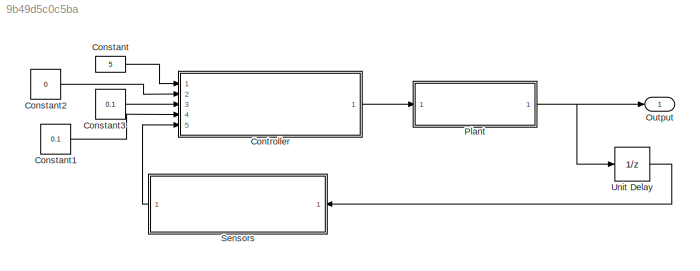
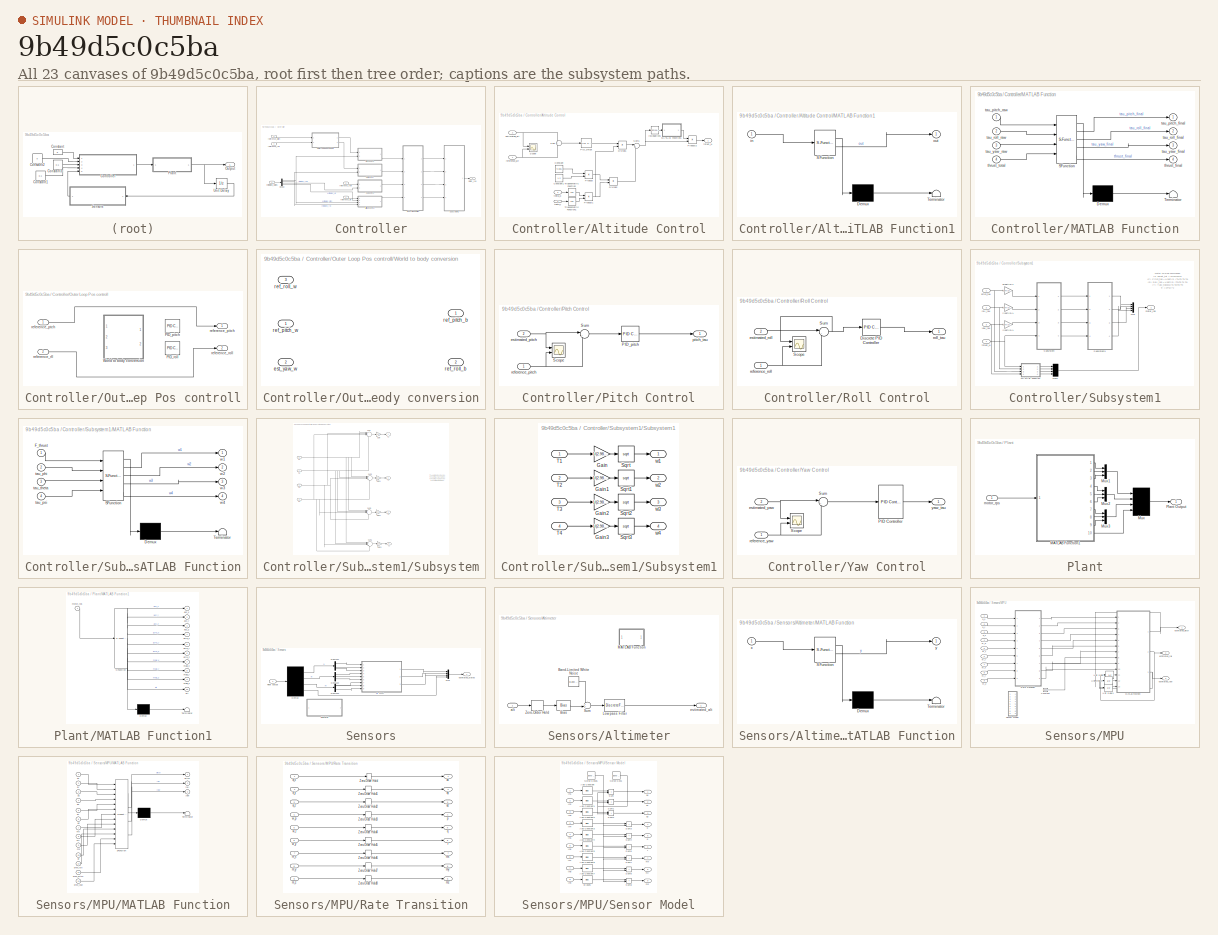
[diagram: thumbnail index - all 23 canvases of the model, root first then tree order]
MODEL slx_9b49d5c0c5ba
KIND model
CONFIG AbsTol = auto
CONFIG EnableMultiTasking = off
CONFIG FixedStep = auto
CONFIG MaxStep = auto
CONFIG MinStep = auto
CONFIG RelTol = 1e-3
CONFIG SampleTimeConstraint = Unconstrained
CONFIG SolverName = ode1
CONFIG StartTime = 0.0
CONFIG StopTime = 10.0
WORKSPACE source: MATLAB code (in-file)
WORKSPACE m = 1.2
WORKSPACE g = 9.81
WORKSPACE I = diag([0.014,0.018,0.028])
WORKSPACE l = 0.225
WORKSPACE b = 2.98e-6*(2*pi)^2  (= 0.000117645684461)
WORKSPACE d = 1.14e-7*(2*pi)^2  (= 4.5005396069e-06)
WORKSPACE Cd = 0.1
WORKSPACE code: m_e = [20; 0; -40];       % earth mag field (uT)
WORKSPACE code: wind = [0.5; 0; 0];       % constant wind (m/s)
BLOCK [Constant] Constant
  Value = 5
BLOCK [Constant] Constant1
  Value = 0.1
BLOCK [Constant] Constant2
  Value = 0
BLOCK [Constant] Constant3
  Value = 0.1
BLOCK [SubSystem] Controller
  Ports = [5, 1]
  RequestExecContextInheritance = off
BLOCK [SubSystem] Controller/Altitude Control
  Ports = [4, 1]
  RequestExecContextInheritance = off
BLOCK [Constant] Controller/Altitude Control/Constant
  Value = 9.805
BLOCK [Constant] Controller/Altitude Control/Constant1
  Value = 1.2
BLOCK [Product] Controller/Altitude Control/Divide1
  Inputs = */
  Ports = [2, 1]
BLOCK [Product] Controller/Altitude Control/Divide2
  Inputs = */
  Ports = [2, 1]
BLOCK [Reference] Controller/Altitude Control/IsNegative1  REF=simulink/Logic and Bit
Operations/Compare
To Zero
  Ports = [1, 1]
  SourceBlock = simulink/Logic and Bit\nOperations/Compare\nTo Zero
  SourceProductBaseCode = SL
  SourceType = Compare To Zero
BLOCK [SubSystem] Controller/Altitude Control/MATLAB Function1
  ErrorFcn = Stateflow.Translate.translate
  PermitHierarchicalResolution = ExplicitOnly
  Ports = [1, 1]
  RequestExecContextInheritance = off
  SFBlockType = MATLAB Function
  TreatAsAtomicUnit = on
BLOCK [Demux] Controller/Altitude Control/MATLAB Function1/ Demux 
  Outputs = 1
  Ports = [1, 1]
BLOCK [S-Function] Controller/Altitude Control/MATLAB Function1/ SFunction 
  EnableBusSupport = on
  FunctionName = sf_sfun
  PortCounts = [1 2]
  Ports = [1, 2]
  SFcnIsStateOwnerBlock = off
  SFunctionDeploymentMode = off
  Tag = Stateflow S-Function 5
BLOCK [Terminator] Controller/Altitude Control/MATLAB Function1/ Terminator 
BLOCK [Inport] Controller/Altitude Control/MATLAB Function1/in
BLOCK [Outport] Controller/Altitude Control/MATLAB Function1/out
BLOCK [Reference] Controller/Altitude Control/PID_thrust  REF=slpidlib/PID Controller
  Ports = [1, 1]
  SourceBlock = slpidlib/PID Controller
  SourceProductBaseCode = SL
  SourceType = PID 1dof
BLOCK [Product] Controller/Altitude Control/Product
  Ports = [2, 1]
BLOCK [Product] Controller/Altitude Control/Product1
  Ports = [2, 1]
BLOCK [Product] Controller/Altitude Control/Product2
  Ports = [2, 1]
BLOCK [Scope] Controller/Altitude Control/Scope
  Floating = off
  NumInputPorts = 2
  Ports = [2]
  ScopeSpecificationString = Simulink.scopes.TimeScopeBlockCfg('CurrentConfiguration', extmgr.ConfigurationSet(extmgr.Configuration('Core','General UI',true,'DisplayFullSourceName',true),extmgr.Configuration('Core','Source UI',true),extmgr.Configuration('Sources','WiredSimulink',true),extmgr.Configuration('Visuals','Time Domain',true,'SerializedDisplays',{struct('MinYLimReal','-13.25882','MaxYLimReal','20.20895','YLabelReal',...<+1527ch>
BLOCK [Sum] Controller/Altitude Control/Sum
  Inputs = -+
  Ports = [2, 1]
BLOCK [Sum] Controller/Altitude Control/Sum1
  Inputs = |++
  Ports = [2, 1]
BLOCK [Trigonometry] Controller/Altitude Control/Trigonometric Function
  Operator = cos
  Ports = [1, 1]
BLOCK [Trigonometry] Controller/Altitude Control/Trigonometric Function1
  Operator = cos
  Ports = [1, 1]
BLOCK [Inport] Controller/Altitude Control/estimated_alt
  Port = 2
BLOCK [Inport] Controller/Altitude Control/reference_alt
BLOCK [Inport] Controller/Altitude Control/theta_p
  Port = 3
BLOCK [Inport] Controller/Altitude Control/theta_r
  Port = 4
BLOCK [Outport] Controller/Altitude Control/thrust_N
BLOCK [Demux] Controller/Demux
  Ports = [1, 4]
BLOCK [SubSystem] Controller/MATLAB Function
  ErrorFcn = Stateflow.Translate.translate
  PermitHierarchicalResolution = ExplicitOnly
  Ports = [4, 4]
  RequestExecContextInheritance = off
  SFBlockType = MATLAB Function
  TreatAsAtomicUnit = on
BLOCK [Demux] Controller/MATLAB Function/ Demux 
  Outputs = 1
  Ports = [1, 1]
BLOCK [S-Function] Controller/MATLAB Function/ SFunction 
  EnableBusSupport = on
  FunctionName = sf_sfun
  PortCounts = [4 5]
  Ports = [4, 5]
  SFcnIsStateOwnerBlock = off
  SFunctionDeploymentMode = off
  Tag = Stateflow S-Function 4
BLOCK [Terminator] Controller/MATLAB Function/ Terminator 
BLOCK [Outport] Controller/MATLAB Function/tau_pitch_final
BLOCK [Inport] Controller/MATLAB Function/tau_pitch_raw
BLOCK [Outport] Controller/MATLAB Function/tau_roll_final
  Port = 2
BLOCK [Inport] Controller/MATLAB Function/tau_roll_raw
  Port = 2
BLOCK [Outport] Controller/MATLAB Function/tau_yaw_final
  Port = 3
BLOCK [Inport] Controller/MATLAB Function/tau_yaw_raw
  Port = 3
BLOCK [Outport] Controller/MATLAB Function/thrust_final
  Port = 4
BLOCK [Inport] Controller/MATLAB Function/thrust_total
  Port = 4
BLOCK [SubSystem] Controller/Outer Loop Pos controll
  Ports = [2, 2]
  RequestExecContextInheritance = off
BLOCK [Reference] Controller/Outer Loop Pos controll/PID_pitch  REF=slpidlib/PID Controller
  Commented = on
  Ports = [1, 1]
  SourceBlock = slpidlib/PID Controller
  SourceProductBaseCode = SL
  SourceType = PID 1dof
BLOCK [Reference] Controller/Outer Loop Pos controll/PID_roll  REF=slpidlib/PID Controller
  Commented = on
  Ports = [1, 1]
  SourceBlock = slpidlib/PID Controller
  SourceProductBaseCode = SL
  SourceType = PID 1dof
BLOCK [SubSystem] Controller/Outer Loop Pos controll/World to body conversion
  Commented = on
  Ports = [3, 2]
  RequestExecContextInheritance = off
BLOCK [Inport] Controller/Outer Loop Pos controll/World to body conversion/est_yaw_w
  Port = 2
BLOCK [Outport] Controller/Outer Loop Pos controll/World to body conversion/ref_pitch_b
BLOCK [Inport] Controller/Outer Loop Pos controll/World to body conversion/ref_pitch_w
BLOCK [Outport] Controller/Outer Loop Pos controll/World to body conversion/ref_roll_b
  Port = 2
BLOCK [Inport] Controller/Outer Loop Pos controll/World to body conversion/ref_roll_w
  Port = 3
BLOCK [Outport] Controller/Outer Loop Pos controll/reference_pitch
BLOCK [Inport] Controller/Outer Loop Pos controll/reference_ptch
BLOCK [Inport] Controller/Outer Loop Pos controll/reference_rll
  Port = 2
BLOCK [Outport] Controller/Outer Loop Pos controll/reference_roll
  Port = 2
BLOCK [SubSystem] Controller/Pitch Control
  Ports = [2, 1]
  RequestExecContextInheritance = off
BLOCK [Reference] Controller/Pitch Control/PID_pitch  REF=slpidlib/PID Controller
  Ports = [1, 1]
  SourceBlock = slpidlib/PID Controller
  SourceProductBaseCode = SL
  SourceType = PID 1dof
BLOCK [Scope] Controller/Pitch Control/Scope
  Floating = off
  NumInputPorts = 2
  Ports = [2]
  ScopeSpecificationString = Simulink.scopes.TimeScopeBlockCfg('CurrentConfiguration', extmgr.ConfigurationSet(extmgr.Configuration('Core','General UI',true,'DisplayFullSourceName',true),extmgr.Configuration('Core','Source UI',true),extmgr.Configuration('Sources','WiredSimulink',true,'DataLoggingVariableName','ScopeData1'),extmgr.Configuration('Visuals','Time Domain',true,'SerializedDisplays',{struct('MinYLimReal','-0.05354',...<+1542ch>
BLOCK [Sum] Controller/Pitch Control/Sum
  Inputs = |-+
  Ports = [2, 1]
BLOCK [Inport] Controller/Pitch Control/estimated_pitch
  Port = 2
BLOCK [Outport] Controller/Pitch Control/pitch_tau
BLOCK [Inport] Controller/Pitch Control/reference_pitch
BLOCK [SubSystem] Controller/Roll Control
  Ports = [2, 1]
  RequestExecContextInheritance = off
BLOCK [Reference] Controller/Roll Control/Discrete PID Controller  REF=slpidlib/PID Controller
  Ports = [1, 1]
  SourceBlock = slpidlib/PID Controller
  SourceProductBaseCode = SL
  SourceType = PID 1dof
BLOCK [Scope] Controller/Roll Control/Scope
  Floating = off
  NumInputPorts = 2
  Ports = [2]
  ScopeSpecificationString = Simulink.scopes.TimeScopeBlockCfg('CurrentConfiguration', extmgr.ConfigurationSet(extmgr.Configuration('Core','General UI',true,'DisplayFullSourceName',true),extmgr.Configuration('Core','Source UI',true),extmgr.Configuration('Sources','WiredSimulink',true,'DataLoggingVariableName','ScopeData2'),extmgr.Configuration('Visuals','Time Domain',true,'SerializedDisplays',{struct('MinYLimReal','-0.30052',...<+1527ch>
BLOCK [Sum] Controller/Roll Control/Sum
  Inputs = |-+
  Ports = [2, 1]
BLOCK [Inport] Controller/Roll Control/estimated_roll
  Port = 2
BLOCK [Inport] Controller/Roll Control/reference_roll
BLOCK [Outport] Controller/Roll Control/roll_tau
BLOCK [SubSystem] Controller/Subsystem1
  Ports = [4, 1]
  RequestExecContextInheritance = off
BLOCK [SubSystem] Controller/Subsystem1/MATLAB Function
  ErrorFcn = Stateflow.Translate.translate
  PermitHierarchicalResolution = ExplicitOnly
  Ports = [4, 4]
  RequestExecContextInheritance = off
  SFBlockType = MATLAB Function
  TreatAsAtomicUnit = on
BLOCK [Demux] Controller/Subsystem1/MATLAB Function/ Demux 
  Outputs = 1
  Ports = [1, 1]
BLOCK [S-Function] Controller/Subsystem1/MATLAB Function/ SFunction 
  EnableBusSupport = on
  FunctionName = sf_sfun
  PortCounts = [4 5]
  Ports = [4, 5]
  SFcnIsStateOwnerBlock = off
  SFunctionDeploymentMode = off
  Tag = Stateflow S-Function 6
BLOCK [Terminator] Controller/Subsystem1/MATLAB Function/ Terminator 
BLOCK [Inport] Controller/Subsystem1/MATLAB Function/F_thrust
BLOCK [Inport] Controller/Subsystem1/MATLAB Function/tau_phi
  Port = 2
BLOCK [Inport] Controller/Subsystem1/MATLAB Function/tau_psi
  Port = 4
BLOCK [Inport] Controller/Subsystem1/MATLAB Function/tau_theta
  Port = 3
BLOCK [Outport] Controller/Subsystem1/MATLAB Function/w1
BLOCK [Outport] Controller/Subsystem1/MATLAB Function/w2
  Port = 2
BLOCK [Outport] Controller/Subsystem1/MATLAB Function/w3
  Port = 3
BLOCK [Outport] Controller/Subsystem1/MATLAB Function/w4
  Port = 4
BLOCK [Mux] Controller/Subsystem1/Mux
  DisplayOption = bar
  Ports = [4, 1]
BLOCK [Mux] Controller/Subsystem1/Mux1
  DisplayOption = bar
  Ports = [4, 1]
BLOCK [SubSystem] Controller/Subsystem1/Subsystem
  Ports = [4, 4]
  RequestExecContextInheritance = off
BLOCK [Gain] Controller/Subsystem1/Subsystem/Gain
  Gain = 0.25
BLOCK [Gain] Controller/Subsystem1/Subsystem/Gain1
  Gain = 0.25
BLOCK [Gain] Controller/Subsystem1/Subsystem/Gain2
  Gain = 0.25
BLOCK [Gain] Controller/Subsystem1/Subsystem/Gain3
  Gain = 0.25
BLOCK [Inport] Controller/Subsystem1/Subsystem/S1
  Port = 4
BLOCK [Inport] Controller/Subsystem1/Subsystem/S2
  Port = 2
BLOCK [Inport] Controller/Subsystem1/Subsystem/S3
BLOCK [Inport] Controller/Subsystem1/Subsystem/S4
  Port = 3
BLOCK [Sum] Controller/Subsystem1/Subsystem/Sum
  Inputs = |+++-
  Ports = [4, 1]
BLOCK [Sum] Controller/Subsystem1/Subsystem/Sum1
  Inputs = |+---
  Ports = [4, 1]
BLOCK [Sum] Controller/Subsystem1/Subsystem/Sum2
  Inputs = |+++-
  Ports = [4, 1]
BLOCK [Sum] Controller/Subsystem1/Subsystem/Sum3
  Inputs = |+++-
  Ports = [4, 1]
BLOCK [Outport] Controller/Subsystem1/Subsystem/T1
BLOCK [Outport] Controller/Subsystem1/Subsystem/T2
  Port = 2
BLOCK [Outport] Controller/Subsystem1/Subsystem/T3
  Port = 3
BLOCK [Outport] Controller/Subsystem1/Subsystem/T4
  Port = 4
BLOCK [SubSystem] Controller/Subsystem1/Subsystem1
  Ports = [4, 4]
  RequestExecContextInheritance = off
BLOCK [Gain] Controller/Subsystem1/Subsystem1/Gain
  Gain = 1/(2.98e-6*(2*pi)^2)
BLOCK [Gain] Controller/Subsystem1/Subsystem1/Gain1
  Gain = 1/(2.98e-6*(2*pi)^2)
BLOCK [Gain] Controller/Subsystem1/Subsystem1/Gain2
  Gain = 1/(2.98e-6*(2*pi)^2)
BLOCK [Gain] Controller/Subsystem1/Subsystem1/Gain3
  Gain = 1/(2.98e-6*(2*pi)^2)
BLOCK [Sqrt] Controller/Subsystem1/Subsystem1/Sqrt
BLOCK [Sqrt] Controller/Subsystem1/Subsystem1/Sqrt1
BLOCK [Sqrt] Controller/Subsystem1/Subsystem1/Sqrt2
BLOCK [Sqrt] Controller/Subsystem1/Subsystem1/Sqrt3
BLOCK [Inport] Controller/Subsystem1/Subsystem1/T1
BLOCK [Inport] Controller/Subsystem1/Subsystem1/T2
  Port = 2
BLOCK [Inport] Controller/Subsystem1/Subsystem1/T3
  Port = 3
BLOCK [Inport] Controller/Subsystem1/Subsystem1/T4
  Port = 4
BLOCK [Outport] Controller/Subsystem1/Subsystem1/w1
BLOCK [Outport] Controller/Subsystem1/Subsystem1/w2
  Port = 2
BLOCK [Outport] Controller/Subsystem1/Subsystem1/w3
  Port = 3
BLOCK [Outport] Controller/Subsystem1/Subsystem1/w4
  Port = 4
BLOCK [Outport] Controller/Subsystem1/motor_rps
BLOCK [Gain] Controller/Subsystem1/p*sqrt(2)//L
  Gain = sqrt(2)/0.225
BLOCK [Inport] Controller/Subsystem1/pitch_tau
BLOCK [Gain] Controller/Subsystem1/r*sqrt(2)//L
  Gain = sqrt(2)/0.225
BLOCK [Inport] Controller/Subsystem1/roll_tau
  Port = 2
BLOCK [Inport] Controller/Subsystem1/thrust_N
  Port = 4
BLOCK [Gain] Controller/Subsystem1/y*sqrt(2)//L
  Gain = sqrt(2)/0.225
BLOCK [Inport] Controller/Subsystem1/yaw_tau
  Port = 3
BLOCK [SubSystem] Controller/Yaw Control
  Ports = [2, 1]
  RequestExecContextInheritance = off
BLOCK [Reference] Controller/Yaw Control/PID Controller  REF=slpidlib/PID Controller
  Ports = [1, 1]
  SourceBlock = slpidlib/PID Controller
  SourceProductBaseCode = SL
  SourceType = PID 1dof
BLOCK [Scope] Controller/Yaw Control/Scope
  Floating = off
  NumInputPorts = 2
  Ports = [2]
  ScopeSpecificationString = Simulink.scopes.TimeScopeBlockCfg('CurrentConfiguration', extmgr.ConfigurationSet(extmgr.Configuration('Core','General UI',true,'DisplayFullSourceName',true),extmgr.Configuration('Core','Source UI',true),extmgr.Configuration('Sources','WiredSimulink',true,'DataLoggingVariableName','ScopeData1'),extmgr.Configuration('Visuals','Time Domain',true,'SerializedDisplays',{struct('MinYLimReal','-0.23401',...<+1561ch>
BLOCK [Sum] Controller/Yaw Control/Sum
  Inputs = |-+
  Ports = [2, 1]
BLOCK [Inport] Controller/Yaw Control/estimated_yaw
  Port = 2
BLOCK [Inport] Controller/Yaw Control/reference_yaw
BLOCK [Outport] Controller/Yaw Control/yaw_tau
BLOCK [Inport] Controller/estimated_states
  Port = 5
  PortDimensions = 4
BLOCK [Outport] Controller/motor_rps
BLOCK [Inport] Controller/reference_alt
BLOCK [Inport] Controller/reference_pitch
  Port = 3
BLOCK [Inport] Controller/reference_roll
  Port = 4
BLOCK [Inport] Controller/reference_yaw
  Port = 2
BLOCK [Outport] Output
  SignalName = Output
BLOCK [SubSystem] Plant
  Ports = [1, 1]
  RequestExecContextInheritance = off
BLOCK [SubSystem] Plant/MATLAB Function1
  ErrorFcn = Stateflow.Translate.translate
  PermitHierarchicalResolution = ExplicitOnly
  Ports = [1, 10]
  RequestExecContextInheritance = off
  SFBlockType = MATLAB Function
  TreatAsAtomicUnit = on
BLOCK [Demux] Plant/MATLAB Function1/ Demux 
  Outputs = 1
  Ports = [1, 1]
BLOCK [S-Function] Plant/MATLAB Function1/ SFunction 
  EnableBusSupport = on
  FunctionName = sf_sfun
  PortCounts = [1 11]
  Ports = [1, 11]
  SFcnIsStateOwnerBlock = off
  SFunctionDeploymentMode = off
  Tag = Stateflow S-Function 3
BLOCK [Terminator] Plant/MATLAB Function1/ Terminator 
BLOCK [Outport] Plant/MATLAB Function1/acc_x
BLOCK [Outport] Plant/MATLAB Function1/acc_y
  Port = 2
BLOCK [Outport] Plant/MATLAB Function1/acc_z
  Port = 3
BLOCK [Outport] Plant/MATLAB Function1/alt
  Port = 10
BLOCK [Outport] Plant/MATLAB Function1/gyro_x
  Port = 4
BLOCK [Outport] Plant/MATLAB Function1/gyro_y
  Port = 5
BLOCK [Outport] Plant/MATLAB Function1/gyro_z
  Port = 6
BLOCK [Outport] Plant/MATLAB Function1/mag_x
  Port = 7
BLOCK [Outport] Plant/MATLAB Function1/mag_y
  Port = 8
BLOCK [Outport] Plant/MATLAB Function1/mag_z
  Port = 9
BLOCK [Inport] Plant/MATLAB Function1/motor_rps
BLOCK [Mux] Plant/Mux
  DisplayOption = bar
  Ports = [4, 1]
BLOCK [Mux] Plant/Mux1
  DisplayOption = bar
  Inputs = 3
  Ports = [3, 1]
BLOCK [Mux] Plant/Mux2
  DisplayOption = bar
  Inputs = 3
  Ports = [3, 1]
BLOCK [Mux] Plant/Mux3
  DisplayOption = bar
  Inputs = 3
  Ports = [3, 1]
BLOCK [Outport] Plant/Plant Output
BLOCK [Inport] Plant/motor_rps
BLOCK [SubSystem] Sensors
  NameLocation = top
  Ports = [1, 1]
  RequestExecContextInheritance = off
BLOCK [SubSystem] Sensors/Altimeter
  Commented = on
  Ports = [1, 1]
  RequestExecContextInheritance = off
BLOCK [Reference] Sensors/Altimeter/Band-Limited White Noise  REF=simulink/Sources/Band-Limited
White Noise
  Ports = [0, 1]
  SourceBlock = simulink/Sources/Band-Limited\nWhite Noise
  SourceProductBaseCode = SL
  SourceType = Band-Limited White Noise.
BLOCK [Bias] Sensors/Altimeter/Bias
  Bias = 2
  SaturateOnIntegerOverflow = off
BLOCK [DiscreteFilter] Sensors/Altimeter/Low pass Filter
  Denominator = [1 -[(1/2*3.14*0.01)/(1/2*3.14*0.01)+0.1]]
  InputPortMap = u0
  Numerator = [0.1/(1/2*3.14*0.01)+0.1]
  Ports = [1, 1]
BLOCK [SubSystem] Sensors/Altimeter/MATLAB Function
  Commented = on
  ErrorFcn = Stateflow.Translate.translate
  PermitHierarchicalResolution = ExplicitOnly
  Ports = [1, 1]
  RequestExecContextInheritance = off
  SFBlockType = MATLAB Function
  TreatAsAtomicUnit = on
BLOCK [Demux] Sensors/Altimeter/MATLAB Function/ Demux 
  Outputs = 1
  Ports = [1, 1]
BLOCK [S-Function] Sensors/Altimeter/MATLAB Function/ SFunction 
  EnableBusSupport = on
  FunctionName = sf_sfun
  PortCounts = [1 2]
  Ports = [1, 2]
  SFcnIsStateOwnerBlock = off
  SFunctionDeploymentMode = off
  Tag = Stateflow S-Function 1
BLOCK [Terminator] Sensors/Altimeter/MATLAB Function/ Terminator 
BLOCK [Inport] Sensors/Altimeter/MATLAB Function/x
BLOCK [Outport] Sensors/Altimeter/MATLAB Function/y
BLOCK [Sum] Sensors/Altimeter/Sum
  Inputs = ++|
  Ports = [2, 1]
BLOCK [ZeroOrderHold] Sensors/Altimeter/Zero-Order Hold
  SampleTime = -1
BLOCK [Inport] Sensors/Altimeter/alt
BLOCK [Outport] Sensors/Altimeter/estimated_alt
BLOCK [Demux] Sensors/Demux
  Ports = [1, 4]
BLOCK [Demux] Sensors/Demux1
  Outputs = 3
  Ports = [1, 3]
BLOCK [Demux] Sensors/Demux2
  Outputs = 3
  Ports = [1, 3]
BLOCK [Demux] Sensors/Demux3
  Outputs = 3
  Ports = [1, 3]
BLOCK [SubSystem] Sensors/MPU
  Ports = [9, 3]
  RequestExecContextInheritance = off
BLOCK [Constant] Sensors/MPU/Constant
  Value = 0.0001
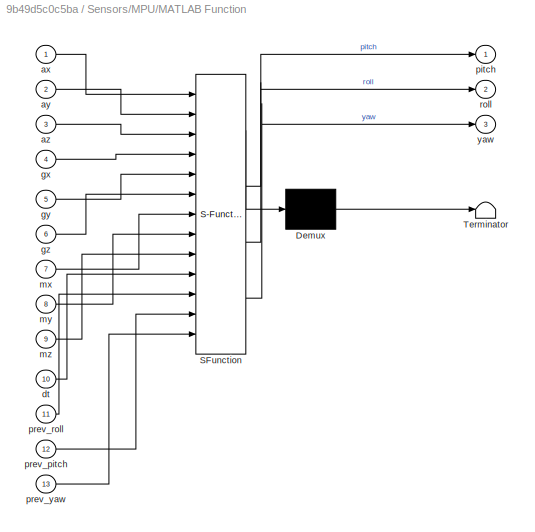
BLOCK [SubSystem] Sensors/MPU/MATLAB Function
  ErrorFcn = Stateflow.Translate.translate
  PermitHierarchicalResolution = ExplicitOnly
  Ports = [13, 3]
  RequestExecContextInheritance = off
  SFBlockType = MATLAB Function
  TreatAsAtomicUnit = on
BLOCK [Demux] Sensors/MPU/MATLAB Function/ Demux 
  Outputs = 1
  Ports = [1, 1]
BLOCK [S-Function] Sensors/MPU/MATLAB Function/ SFunction 
  EnableBusSupport = on
  FunctionName = sf_sfun
  PortCounts = [13 4]
  Ports = [13, 4]
  SFcnIsStateOwnerBlock = off
  SFunctionDeploymentMode = off
  Tag = Stateflow S-Function 2
BLOCK [Terminator] Sensors/MPU/MATLAB Function/ Terminator 
BLOCK [Inport] Sensors/MPU/MATLAB Function/ax
BLOCK [Inport] Sensors/MPU/MATLAB Function/ay
  Port = 2
BLOCK [Inport] Sensors/MPU/MATLAB Function/az
  Port = 3
BLOCK [Inport] Sensors/MPU/MATLAB Function/dt
  Port = 10
BLOCK [Inport] Sensors/MPU/MATLAB Function/gx
  Port = 4
BLOCK [Inport] Sensors/MPU/MATLAB Function/gy
  Port = 5
BLOCK [Inport] Sensors/MPU/MATLAB Function/gz
  Port = 6
BLOCK [Inport] Sensors/MPU/MATLAB Function/mx
  Port = 7
BLOCK [Inport] Sensors/MPU/MATLAB Function/my
  Port = 8
BLOCK [Inport] Sensors/MPU/MATLAB Function/mz
  Port = 9
BLOCK [Outport] Sensors/MPU/MATLAB Function/pitch
BLOCK [Inport] Sensors/MPU/MATLAB Function/prev_pitch
  Port = 12
BLOCK [Inport] Sensors/MPU/MATLAB Function/prev_roll
  Port = 11
BLOCK [Inport] Sensors/MPU/MATLAB Function/prev_yaw
  Port = 13
BLOCK [Outport] Sensors/MPU/MATLAB Function/roll
  Port = 2
BLOCK [Outport] Sensors/MPU/MATLAB Function/yaw
  Port = 3
BLOCK [SubSystem] Sensors/MPU/Rate Transition
  Ports = [9, 9]
  RequestExecContextInheritance = off
BLOCK [ZeroOrderHold] Sensors/MPU/Rate Transition/Zero-Order Hold
  SampleTime = 0.0001
BLOCK [ZeroOrderHold] Sensors/MPU/Rate Transition/Zero-Order Hold1
  SampleTime = 0.0001
BLOCK [ZeroOrderHold] Sensors/MPU/Rate Transition/Zero-Order Hold2
  SampleTime = 0.0001
BLOCK [ZeroOrderHold] Sensors/MPU/Rate Transition/Zero-Order Hold3
  SampleTime = 0.0001
BLOCK [ZeroOrderHold] Sensors/MPU/Rate Transition/Zero-Order Hold4
  SampleTime = 0.0001
BLOCK [ZeroOrderHold] Sensors/MPU/Rate Transition/Zero-Order Hold5
  SampleTime = 0.0001
BLOCK [ZeroOrderHold] Sensors/MPU/Rate Transition/Zero-Order Hold6
  SampleTime = 0.0001
BLOCK [ZeroOrderHold] Sensors/MPU/Rate Transition/Zero-Order Hold7
  SampleTime = 0.0001
BLOCK [ZeroOrderHold] Sensors/MPU/Rate Transition/Zero-Order Hold8
  SampleTime = 0.0001
BLOCK [Inport] Sensors/MPU/Rate Transition/a_x
BLOCK [Inport] Sensors/MPU/Rate Transition/a_y
  Port = 2
BLOCK [Inport] Sensors/MPU/Rate Transition/a_z
  Port = 3
BLOCK [Outport] Sensors/MPU/Rate Transition/ax
BLOCK [Outport] Sensors/MPU/Rate Transition/ay
  Port = 2
BLOCK [Outport] Sensors/MPU/Rate Transition/az
  Port = 3
BLOCK [Inport] Sensors/MPU/Rate Transition/m_x
  Port = 7
BLOCK [Inport] Sensors/MPU/Rate Transition/m_y
  Port = 8
BLOCK [Inport] Sensors/MPU/Rate Transition/m_z
  Port = 9
BLOCK [Outport] Sensors/MPU/Rate Transition/mx
  Port = 7
BLOCK [Outport] Sensors/MPU/Rate Transition/my
  Port = 8
BLOCK [Outport] Sensors/MPU/Rate Transition/mz
  Port = 9
BLOCK [Outport] Sensors/MPU/Rate Transition/p
  Port = 4
BLOCK [Outport] Sensors/MPU/Rate Transition/q
  Port = 5
BLOCK [Outport] Sensors/MPU/Rate Transition/r
  Port = 6
BLOCK [Inport] Sensors/MPU/Rate Transition/w_p
  Port = 4
BLOCK [Inport] Sensors/MPU/Rate Transition/w_r
  Port = 5
BLOCK [Inport] Sensors/MPU/Rate Transition/w_y
  Port = 6
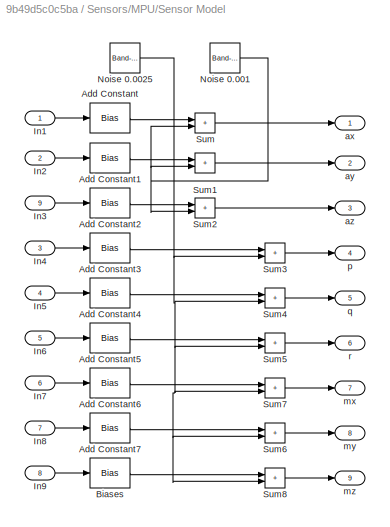
BLOCK [SubSystem] Sensors/MPU/Sensor Model
  Commented = on
  PortSchema = {"entries":[{"content":{"sides":[{"content":{"connectorIds":["In1","In2","In3","In4","In5","In6","In7","In8"]},"type":"ConnectorPlacement.EquallySpacedRectSide","uuid":"be2a5e1d-272f-4bf5-bf08-cc525c87008b"},{"content":{"connectorIds":["Out1","Out2","Out3","Out4","Out5","Out6","Out7","Out8","Out9","In9"],"side":"RIGHT"},"type":"ConnectorPlacement.EquallySpacedRectSide","uuid":"f813fc2d-22be-4ab3-b...<+344ch>
  Ports = [9, 9]
  RequestExecContextInheritance = off
BLOCK [Bias] Sensors/MPU/Sensor Model/Add Constant
  Bias = 0.05
  SaturateOnIntegerOverflow = off
BLOCK [Bias] Sensors/MPU/Sensor Model/Add Constant1
  Bias = 0.05
  SaturateOnIntegerOverflow = off
BLOCK [Bias] Sensors/MPU/Sensor Model/Add Constant2
  Bias = 0.05
  SaturateOnIntegerOverflow = off
BLOCK [Bias] Sensors/MPU/Sensor Model/Add Constant3
  Bias = 0.02
  SaturateOnIntegerOverflow = off
BLOCK [Bias] Sensors/MPU/Sensor Model/Add Constant4
  Bias = 0.02
  SaturateOnIntegerOverflow = off
BLOCK [Bias] Sensors/MPU/Sensor Model/Add Constant5
  Bias = 0.02
  SaturateOnIntegerOverflow = off
BLOCK [Bias] Sensors/MPU/Sensor Model/Add Constant6
  Bias = 0.01
  SaturateOnIntegerOverflow = off
BLOCK [Bias] Sensors/MPU/Sensor Model/Add Constant7
  Bias = 0.01
  SaturateOnIntegerOverflow = off
BLOCK [Bias] Sensors/MPU/Sensor Model/Biases
  Bias = 0.01
  SaturateOnIntegerOverflow = off
BLOCK [Inport] Sensors/MPU/Sensor Model/In1
BLOCK [Inport] Sensors/MPU/Sensor Model/In2
  Port = 2
BLOCK [Inport] Sensors/MPU/Sensor Model/In3
  Port = 9
BLOCK [Inport] Sensors/MPU/Sensor Model/In4
  Port = 3
BLOCK [Inport] Sensors/MPU/Sensor Model/In5
  Port = 4
BLOCK [Inport] Sensors/MPU/Sensor Model/In6
  Port = 5
BLOCK [Inport] Sensors/MPU/Sensor Model/In7
  Port = 6
BLOCK [Inport] Sensors/MPU/Sensor Model/In8
  Port = 7
BLOCK [Inport] Sensors/MPU/Sensor Model/In9
  Port = 8
BLOCK [Reference] Sensors/MPU/Sensor Model/Noise 0.001  REF=simulink/Sources/Band-Limited
White Noise
  Ports = [0, 1]
  SourceBlock = simulink/Sources/Band-Limited\nWhite Noise
  SourceProductBaseCode = SL
  SourceType = Band-Limited White Noise.
BLOCK [Reference] Sensors/MPU/Sensor Model/Noise 0.0025  REF=simulink/Sources/Band-Limited
White Noise
  Ports = [0, 1]
  SourceBlock = simulink/Sources/Band-Limited\nWhite Noise
  SourceProductBaseCode = SL
  SourceType = Band-Limited White Noise.
BLOCK [Sum] Sensors/MPU/Sensor Model/Sum
  IconShape = rectangular
  Ports = [2, 1]
BLOCK [Sum] Sensors/MPU/Sensor Model/Sum1
  IconShape = rectangular
  Ports = [2, 1]
BLOCK [Sum] Sensors/MPU/Sensor Model/Sum2
  IconShape = rectangular
  Ports = [2, 1]
BLOCK [Sum] Sensors/MPU/Sensor Model/Sum3
  IconShape = rectangular
  Ports = [2, 1]
BLOCK [Sum] Sensors/MPU/Sensor Model/Sum4
  IconShape = rectangular
  Ports = [2, 1]
BLOCK [Sum] Sensors/MPU/Sensor Model/Sum5
  IconShape = rectangular
  Ports = [2, 1]
BLOCK [Sum] Sensors/MPU/Sensor Model/Sum6
  IconShape = rectangular
  Ports = [2, 1]
BLOCK [Sum] Sensors/MPU/Sensor Model/Sum7
  IconShape = rectangular
  Ports = [2, 1]
BLOCK [Sum] Sensors/MPU/Sensor Model/Sum8
  IconShape = rectangular
  Ports = [2, 1]
BLOCK [Outport] Sensors/MPU/Sensor Model/ax
BLOCK [Outport] Sensors/MPU/Sensor Model/ay
  Port = 2
BLOCK [Outport] Sensors/MPU/Sensor Model/az
  Port = 3
BLOCK [Outport] Sensors/MPU/Sensor Model/mx
  Port = 7
BLOCK [Outport] Sensors/MPU/Sensor Model/my
  Port = 8
BLOCK [Outport] Sensors/MPU/Sensor Model/mz
  Port = 9
BLOCK [Outport] Sensors/MPU/Sensor Model/p
  Port = 4
BLOCK [Outport] Sensors/MPU/Sensor Model/q
  Port = 5
BLOCK [Outport] Sensors/MPU/Sensor Model/r
  Port = 6
BLOCK [UnitDelay] Sensors/MPU/Unit Delay
  HasFrameUpgradeWarning = on
  SampleTime = -1
BLOCK [UnitDelay] Sensors/MPU/Unit Delay1
  HasFrameUpgradeWarning = on
  SampleTime = -1
BLOCK [UnitDelay] Sensors/MPU/Unit Delay2
  HasFrameUpgradeWarning = on
  SampleTime = -1
BLOCK [Inport] Sensors/MPU/a_x
BLOCK [Inport] Sensors/MPU/a_y
  Port = 2
BLOCK [Inport] Sensors/MPU/a_z
  Port = 3
BLOCK [Outport] Sensors/MPU/estimated_pitch
BLOCK [Outport] Sensors/MPU/estimated_roll
  Port = 2
BLOCK [Outport] Sensors/MPU/estimated_yaw
  Port = 3
BLOCK [Inport] Sensors/MPU/m_x
  Port = 7
BLOCK [Inport] Sensors/MPU/m_y
  Port = 8
BLOCK [Inport] Sensors/MPU/m_z
  Port = 9
BLOCK [Inport] Sensors/MPU/w_p
  Port = 4
BLOCK [Inport] Sensors/MPU/w_r
  Port = 5
BLOCK [Inport] Sensors/MPU/w_y
  Port = 6
BLOCK [Mux] Sensors/Mux
  DisplayOption = bar
  Ports = [4, 1]
BLOCK [Inport] Sensors/Plant output
BLOCK [Outport] Sensors/estimated_states
BLOCK [UnitDelay] Unit Delay
  HasFrameUpgradeWarning = on
  InitialCondition = [[0;0;0];[0;0;0];[0;0;0];0]
  SampleTime = -1
ANNOTATION Controller/Subsystem1: Motor Mixing commands: (T) Thrust_tot = T1+T2+T3+T4 (P) Pitch_toq = L/sqrt(2) (T1+T2-T3-T4) (R) Roll_toq = L/sqrt(2) (T2+T3-T1-T4) (Y) Yaw_toq=kQ(T1-T2+T3-T4) Ti = kT*wi^2 Here, L is arm length kQ is torque coefficient kT is thrust coefficient now, S1 = T S2 = sqrt(2)/L*R S3 = sqrt(2)/L*P S4 = sqrt(2)/L*Y so, T1 = 1/4(S1-S2+S3+S4) T2 = 1/4(S1+S2+S3-S4) T3 = 1/4(S1+S2-S3+S4) T4 = 1/4(S1-S2-S3-S4) a...<+186ch>
ANNOTATION Controller/Subsystem1/Subsystem: T1 = 1/4(S1-S2+S3+S4) T2 = 1/4(S1+S2+S3-S4) T3 = 1/4(S1+S2-S3+S4) T4 = 1/4(S1-S2-S3-S4)
LINE Constant1:1 -> Controller:4
LINE Constant2:1 -> Controller:2
LINE Constant3:1 -> Controller:3
LINE Constant:1 -> Controller:1
LINE Controller/Altitude Control/Constant1:1 -> Controller/Altitude Control/Product:2
LINE Controller/Altitude Control/Constant:1 -> Controller/Altitude Control/Product:1
LINE Controller/Altitude Control/Divide1:1 -> Controller/Altitude Control/Sum1:1
LINE Controller/Altitude Control/Divide2:1 -> Controller/Altitude Control/Sum1:2
LINE Controller/Altitude Control/IsNegative1:1 -> Controller/Altitude Control/MATLAB Function1:1
LINE Controller/Altitude Control/MATLAB Function1:1 -> Controller/Altitude Control/Product2:1
LINE Controller/Altitude Control/PID_thrust:1 -> Controller/Altitude Control/Divide1:1
NET Controller/Altitude Control/Product1:1 -> Controller/Altitude Control/Divide1:2, Controller/Altitude Control/Divide2:2
LINE Controller/Altitude Control/Product2:1 -> Controller/Altitude Control/thrust_N:1
LINE Controller/Altitude Control/Product:1 -> Controller/Altitude Control/Divide2:1
NET Controller/Altitude Control/Sum1:1 -> Controller/Altitude Control/IsNegative1:1, Controller/Altitude Control/Product2:2
LINE Controller/Altitude Control/Sum:1 -> Controller/Altitude Control/PID_thrust:1
LINE Controller/Altitude Control/Trigonometric Function1:1 -> Controller/Altitude Control/Product1:2
LINE Controller/Altitude Control/Trigonometric Function:1 -> Controller/Altitude Control/Product1:1
NET Controller/Altitude Control/estimated_alt:1 -> Controller/Altitude Control/Scope:1, Controller/Altitude Control/Sum:1
NET Controller/Altitude Control/reference_alt:1 -> Controller/Altitude Control/Scope:2, Controller/Altitude Control/Sum:2
LINE Controller/Altitude Control/theta_p:1 -> Controller/Altitude Control/Trigonometric Function:1
LINE Controller/Altitude Control/theta_r:1 -> Controller/Altitude Control/Trigonometric Function1:1
LINE Controller/Altitude Control:1 -> Controller/MATLAB Function:4
NET Controller/Demux:1 -> Controller/Altitude Control:3, Controller/Pitch Control:2
NET Controller/Demux:2 -> Controller/Altitude Control:4, Controller/Roll Control:2
LINE Controller/Demux:3 -> Controller/Yaw Control:2
LINE Controller/Demux:4 -> Controller/Altitude Control:2
LINE Controller/MATLAB Function:1 -> Controller/Subsystem1:1
LINE Controller/MATLAB Function:2 -> Controller/Subsystem1:2
LINE Controller/MATLAB Function:3 -> Controller/Subsystem1:3
LINE Controller/MATLAB Function:4 -> Controller/Subsystem1:4
LINE Controller/Outer Loop Pos controll/reference_ptch:1 -> Controller/Outer Loop Pos controll/reference_pitch:1
LINE Controller/Outer Loop Pos controll/reference_rll:1 -> Controller/Outer Loop Pos controll/reference_roll:1
LINE Controller/Outer Loop Pos controll:1 -> Controller/Pitch Control:1
LINE Controller/Outer Loop Pos controll:2 -> Controller/Roll Control:1
LINE Controller/Pitch Control/PID_pitch:1 -> Controller/Pitch Control/pitch_tau:1
LINE Controller/Pitch Control/Sum:1 -> Controller/Pitch Control/PID_pitch:1
NET Controller/Pitch Control/estimated_pitch:1 -> Controller/Pitch Control/Scope:1, Controller/Pitch Control/Sum:1
NET Controller/Pitch Control/reference_pitch:1 -> Controller/Pitch Control/Scope:2, Controller/Pitch Control/Sum:2
LINE Controller/Pitch Control:1 -> Controller/MATLAB Function:1
LINE Controller/Roll Control/Discrete PID Controller:1 -> Controller/Roll Control/roll_tau:1
NET Controller/Roll Control/Sum:1 -> Controller/Roll Control/Discrete PID Controller:1, Controller/Roll Control/Scope:1
LINE Controller/Roll Control/estimated_roll:1 -> Controller/Roll Control/Sum:1
NET Controller/Roll Control/reference_roll:1 -> Controller/Roll Control/Scope:2, Controller/Roll Control/Sum:2
LINE Controller/Roll Control:1 -> Controller/MATLAB Function:2
LINE Controller/Subsystem1/MATLAB Function:1 -> Controller/Subsystem1/Mux1:1
LINE Controller/Subsystem1/MATLAB Function:2 -> Controller/Subsystem1/Mux1:2
LINE Controller/Subsystem1/MATLAB Function:3 -> Controller/Subsystem1/Mux1:3
LINE Controller/Subsystem1/MATLAB Function:4 -> Controller/Subsystem1/Mux1:4
LINE Controller/Subsystem1/Mux1:1 -> Controller/Subsystem1/motor_rps:1
LINE Controller/Subsystem1/Subsystem/Gain1:1 -> Controller/Subsystem1/Subsystem/T2:1
LINE Controller/Subsystem1/Subsystem/Gain2:1 -> Controller/Subsystem1/Subsystem/T3:1
LINE Controller/Subsystem1/Subsystem/Gain3:1 -> Controller/Subsystem1/Subsystem/T4:1
LINE Controller/Subsystem1/Subsystem/Gain:1 -> Controller/Subsystem1/Subsystem/T1:1
NET Controller/Subsystem1/Subsystem/S1:1 -> Controller/Subsystem1/Subsystem/Sum1:1, Controller/Subsystem1/Subsystem/Sum2:1, Controller/Subsystem1/Subsystem/Sum3:1, Controller/Subsystem1/Subsystem/Sum:1
NET Controller/Subsystem1/Subsystem/S2:1 -> Controller/Subsystem1/Subsystem/Sum1:2, Controller/Subsystem1/Subsystem/Sum2:2, Controller/Subsystem1/Subsystem/Sum3:2, Controller/Subsystem1/Subsystem/Sum:4
NET Controller/Subsystem1/Subsystem/S3:1 -> Controller/Subsystem1/Subsystem/Sum1:3, Controller/Subsystem1/Subsystem/Sum2:3, Controller/Subsystem1/Subsystem/Sum3:4, Controller/Subsystem1/Subsystem/Sum:2
NET Controller/Subsystem1/Subsystem/S4:1 -> Controller/Subsystem1/Subsystem/Sum1:4, Controller/Subsystem1/Subsystem/Sum2:4, Controller/Subsystem1/Subsystem/Sum3:3, Controller/Subsystem1/Subsystem/Sum:3
LINE Controller/Subsystem1/Subsystem/Sum1:1 -> Controller/Subsystem1/Subsystem/Gain3:1
LINE Controller/Subsystem1/Subsystem/Sum2:1 -> Controller/Subsystem1/Subsystem/Gain1:1
LINE Controller/Subsystem1/Subsystem/Sum3:1 -> Controller/Subsystem1/Subsystem/Gain2:1
LINE Controller/Subsystem1/Subsystem/Sum:1 -> Controller/Subsystem1/Subsystem/Gain:1
LINE Controller/Subsystem1/Subsystem1/Gain1:1 -> Controller/Subsystem1/Subsystem1/Sqrt1:1
LINE Controller/Subsystem1/Subsystem1/Gain2:1 -> Controller/Subsystem1/Subsystem1/Sqrt2:1
LINE Controller/Subsystem1/Subsystem1/Gain3:1 -> Controller/Subsystem1/Subsystem1/Sqrt3:1
LINE Controller/Subsystem1/Subsystem1/Gain:1 -> Controller/Subsystem1/Subsystem1/Sqrt:1
LINE Controller/Subsystem1/Subsystem1/Sqrt1:1 -> Controller/Subsystem1/Subsystem1/w2:1
LINE Controller/Subsystem1/Subsystem1/Sqrt2:1 -> Controller/Subsystem1/Subsystem1/w3:1
LINE Controller/Subsystem1/Subsystem1/Sqrt3:1 -> Controller/Subsystem1/Subsystem1/w4:1
LINE Controller/Subsystem1/Subsystem1/Sqrt:1 -> Controller/Subsystem1/Subsystem1/w1:1
LINE Controller/Subsystem1/Subsystem1/T1:1 -> Controller/Subsystem1/Subsystem1/Gain:1
LINE Controller/Subsystem1/Subsystem1/T2:1 -> Controller/Subsystem1/Subsystem1/Gain1:1
LINE Controller/Subsystem1/Subsystem1/T3:1 -> Controller/Subsystem1/Subsystem1/Gain2:1
LINE Controller/Subsystem1/Subsystem1/T4:1 -> Controller/Subsystem1/Subsystem1/Gain3:1
LINE Controller/Subsystem1/Subsystem1:1 -> Controller/Subsystem1/Mux:1
LINE Controller/Subsystem1/Subsystem1:2 -> Controller/Subsystem1/Mux:2
LINE Controller/Subsystem1/Subsystem1:3 -> Controller/Subsystem1/Mux:3
LINE Controller/Subsystem1/Subsystem1:4 -> Controller/Subsystem1/Mux:4
LINE Controller/Subsystem1/Subsystem:1 -> Controller/Subsystem1/Subsystem1:1
LINE Controller/Subsystem1/Subsystem:2 -> Controller/Subsystem1/Subsystem1:2
LINE Controller/Subsystem1/Subsystem:3 -> Controller/Subsystem1/Subsystem1:3
LINE Controller/Subsystem1/Subsystem:4 -> Controller/Subsystem1/Subsystem1:4
LINE Controller/Subsystem1/p*sqrt(2)//L:1 -> Controller/Subsystem1/Subsystem:1
NET Controller/Subsystem1/pitch_tau:1 -> Controller/Subsystem1/MATLAB Function:3, Controller/Subsystem1/p*sqrt(2)//L:1
LINE Controller/Subsystem1/r*sqrt(2)//L:1 -> Controller/Subsystem1/Subsystem:2
NET Controller/Subsystem1/roll_tau:1 -> Controller/Subsystem1/MATLAB Function:2, Controller/Subsystem1/r*sqrt(2)//L:1
NET Controller/Subsystem1/thrust_N:1 -> Controller/Subsystem1/MATLAB Function:1, Controller/Subsystem1/Subsystem:4
LINE Controller/Subsystem1/y*sqrt(2)//L:1 -> Controller/Subsystem1/Subsystem:3
NET Controller/Subsystem1/yaw_tau:1 -> Controller/Subsystem1/MATLAB Function:4, Controller/Subsystem1/y*sqrt(2)//L:1
LINE Controller/Subsystem1:1 -> Controller/motor_rps:1
LINE Controller/Yaw Control/PID Controller:1 -> Controller/Yaw Control/yaw_tau:1
LINE Controller/Yaw Control/Sum:1 -> Controller/Yaw Control/PID Controller:1
NET Controller/Yaw Control/estimated_yaw:1 -> Controller/Yaw Control/Scope:1, Controller/Yaw Control/Sum:1
NET Controller/Yaw Control/reference_yaw:1 -> Controller/Yaw Control/Scope:2, Controller/Yaw Control/Sum:2
LINE Controller/Yaw Control:1 -> Controller/MATLAB Function:3
LINE Controller/estimated_states:1 -> Controller/Demux:1
LINE Controller/reference_alt:1 -> Controller/Altitude Control:1
LINE Controller/reference_pitch:1 -> Controller/Outer Loop Pos controll:1
LINE Controller/reference_roll:1 -> Controller/Outer Loop Pos controll:2
LINE Controller/reference_yaw:1 -> Controller/Yaw Control:1
LINE Controller:1 -> Plant:1
LINE Plant/MATLAB Function1:1 -> Plant/Mux1:1
LINE Plant/MATLAB Function1:10 -> Plant/Mux:4
LINE Plant/MATLAB Function1:2 -> Plant/Mux1:2
LINE Plant/MATLAB Function1:3 -> Plant/Mux1:3
LINE Plant/MATLAB Function1:4 -> Plant/Mux2:1
LINE Plant/MATLAB Function1:5 -> Plant/Mux2:2
LINE Plant/MATLAB Function1:6 -> Plant/Mux2:3
LINE Plant/MATLAB Function1:7 -> Plant/Mux3:1
LINE Plant/MATLAB Function1:8 -> Plant/Mux3:2
LINE Plant/MATLAB Function1:9 -> Plant/Mux3:3
LINE Plant/Mux1:1 -> Plant/Mux:1
LINE Plant/Mux2:1 -> Plant/Mux:2
LINE Plant/Mux3:1 -> Plant/Mux:3
LINE Plant/Mux:1 -> Plant/Plant Output:1
LINE Plant/motor_rps:1 -> Plant/MATLAB Function1:1
NET Plant:1 -> Output:1, Unit Delay:1
LINE Sensors/Altimeter/Band-Limited White Noise:1 -> Sensors/Altimeter/Sum:1
LINE Sensors/Altimeter/Bias:1 -> Sensors/Altimeter/Sum:2
LINE Sensors/Altimeter/Low pass Filter:1 -> Sensors/Altimeter/estimated_alt:1
LINE Sensors/Altimeter/Sum:1 -> Sensors/Altimeter/Low pass Filter:1
LINE Sensors/Altimeter/Zero-Order Hold:1 -> Sensors/Altimeter/Bias:1
LINE Sensors/Altimeter/alt:1 -> Sensors/Altimeter/Zero-Order Hold:1
LINE Sensors/Demux1:1 -> Sensors/MPU:1
LINE Sensors/Demux1:2 -> Sensors/MPU:2
LINE Sensors/Demux1:3 -> Sensors/MPU:3
LINE Sensors/Demux2:1 -> Sensors/MPU:4
LINE Sensors/Demux2:2 -> Sensors/MPU:5
LINE Sensors/Demux2:3 -> Sensors/MPU:6
LINE Sensors/Demux3:1 -> Sensors/MPU:7
LINE Sensors/Demux3:2 -> Sensors/MPU:8
LINE Sensors/Demux3:3 -> Sensors/MPU:9
LINE Sensors/Demux:1 -> Sensors/Demux1:1
LINE Sensors/Demux:2 -> Sensors/Demux2:1
LINE Sensors/Demux:3 -> Sensors/Demux3:1
LINE Sensors/Demux:4 -> Sensors/Mux:4
LINE Sensors/MPU/Constant:1 -> Sensors/MPU/MATLAB Function:8
NET Sensors/MPU/MATLAB Function:1 -> Sensors/MPU/Unit Delay2:1, Sensors/MPU/estimated_pitch:1
NET Sensors/MPU/MATLAB Function:2 -> Sensors/MPU/Unit Delay:1, Sensors/MPU/estimated_roll:1
NET Sensors/MPU/MATLAB Function:3 -> Sensors/MPU/Unit Delay1:1, Sensors/MPU/estimated_yaw:1
LINE Sensors/MPU/Rate Transition/Zero-Order Hold1:1 -> Sensors/MPU/Rate Transition/ay:1
LINE Sensors/MPU/Rate Transition/Zero-Order Hold2:1 -> Sensors/MPU/Rate Transition/az:1
LINE Sensors/MPU/Rate Transition/Zero-Order Hold3:1 -> Sensors/MPU/Rate Transition/p:1
LINE Sensors/MPU/Rate Transition/Zero-Order Hold4:1 -> Sensors/MPU/Rate Transition/q:1
LINE Sensors/MPU/Rate Transition/Zero-Order Hold5:1 -> Sensors/MPU/Rate Transition/r:1
LINE Sensors/MPU/Rate Transition/Zero-Order Hold6:1 -> Sensors/MPU/Rate Transition/mx:1
LINE Sensors/MPU/Rate Transition/Zero-Order Hold7:1 -> Sensors/MPU/Rate Transition/my:1
LINE Sensors/MPU/Rate Transition/Zero-Order Hold8:1 -> Sensors/MPU/Rate Transition/mz:1
LINE Sensors/MPU/Rate Transition/Zero-Order Hold:1 -> Sensors/MPU/Rate Transition/ax:1
LINE Sensors/MPU/Rate Transition/a_x:1 -> Sensors/MPU/Rate Transition/Zero-Order Hold:1
LINE Sensors/MPU/Rate Transition/a_y:1 -> Sensors/MPU/Rate Transition/Zero-Order Hold1:1
LINE Sensors/MPU/Rate Transition/a_z:1 -> Sensors/MPU/Rate Transition/Zero-Order Hold2:1
LINE Sensors/MPU/Rate Transition/m_x:1 -> Sensors/MPU/Rate Transition/Zero-Order Hold6:1
LINE Sensors/MPU/Rate Transition/m_y:1 -> Sensors/MPU/Rate Transition/Zero-Order Hold7:1
LINE Sensors/MPU/Rate Transition/m_z:1 -> Sensors/MPU/Rate Transition/Zero-Order Hold8:1
LINE Sensors/MPU/Rate Transition/w_p:1 -> Sensors/MPU/Rate Transition/Zero-Order Hold3:1
LINE Sensors/MPU/Rate Transition/w_r:1 -> Sensors/MPU/Rate Transition/Zero-Order Hold4:1
LINE Sensors/MPU/Rate Transition/w_y:1 -> Sensors/MPU/Rate Transition/Zero-Order Hold5:1
LINE Sensors/MPU/Rate Transition:1 -> Sensors/MPU/MATLAB Function:1
LINE Sensors/MPU/Rate Transition:2 -> Sensors/MPU/MATLAB Function:2
LINE Sensors/MPU/Rate Transition:3 -> Sensors/MPU/MATLAB Function:3
LINE Sensors/MPU/Rate Transition:4 -> Sensors/MPU/MATLAB Function:4
LINE Sensors/MPU/Rate Transition:5 -> Sensors/MPU/MATLAB Function:5
LINE Sensors/MPU/Rate Transition:6 -> Sensors/MPU/MATLAB Function:6
LINE Sensors/MPU/Rate Transition:7 -> Sensors/MPU/MATLAB Function:7
LINE Sensors/MPU/Rate Transition:8 -> Sensors/MPU/MATLAB Function:9
LINE Sensors/MPU/Rate Transition:9 -> Sensors/MPU/MATLAB Function:10
LINE Sensors/MPU/Sensor Model/Add Constant1:1 -> Sensors/MPU/Sensor Model/Sum1:1
LINE Sensors/MPU/Sensor Model/Add Constant2:1 -> Sensors/MPU/Sensor Model/Sum2:1
LINE Sensors/MPU/Sensor Model/Add Constant3:1 -> Sensors/MPU/Sensor Model/Sum3:1
LINE Sensors/MPU/Sensor Model/Add Constant4:1 -> Sensors/MPU/Sensor Model/Sum4:1
LINE Sensors/MPU/Sensor Model/Add Constant5:1 -> Sensors/MPU/Sensor Model/Sum5:1
LINE Sensors/MPU/Sensor Model/Add Constant6:1 -> Sensors/MPU/Sensor Model/Sum7:1
LINE Sensors/MPU/Sensor Model/Add Constant7:1 -> Sensors/MPU/Sensor Model/Sum6:1
LINE Sensors/MPU/Sensor Model/Add Constant:1 -> Sensors/MPU/Sensor Model/Sum:1
LINE Sensors/MPU/Sensor Model/Biases:1 -> Sensors/MPU/Sensor Model/Sum8:1
LINE Sensors/MPU/Sensor Model/In1:1 -> Sensors/MPU/Sensor Model/Add Constant:1
LINE Sensors/MPU/Sensor Model/In2:1 -> Sensors/MPU/Sensor Model/Add Constant1:1
LINE Sensors/MPU/Sensor Model/In3:1 -> Sensors/MPU/Sensor Model/Add Constant2:1
LINE Sensors/MPU/Sensor Model/In4:1 -> Sensors/MPU/Sensor Model/Add Constant3:1
LINE Sensors/MPU/Sensor Model/In5:1 -> Sensors/MPU/Sensor Model/Add Constant4:1
LINE Sensors/MPU/Sensor Model/In6:1 -> Sensors/MPU/Sensor Model/Add Constant5:1
LINE Sensors/MPU/Sensor Model/In7:1 -> Sensors/MPU/Sensor Model/Add Constant6:1
LINE Sensors/MPU/Sensor Model/In8:1 -> Sensors/MPU/Sensor Model/Add Constant7:1
LINE Sensors/MPU/Sensor Model/In9:1 -> Sensors/MPU/Sensor Model/Biases:1
NET Sensors/MPU/Sensor Model/Noise 0.001:1 -> Sensors/MPU/Sensor Model/Sum1:2, Sensors/MPU/Sensor Model/Sum2:2, Sensors/MPU/Sensor Model/Sum:2
NET Sensors/MPU/Sensor Model/Noise 0.0025:1 -> Sensors/MPU/Sensor Model/Sum3:2, Sensors/MPU/Sensor Model/Sum4:2, Sensors/MPU/Sensor Model/Sum5:2, Sensors/MPU/Sensor Model/Sum6:2, Sensors/MPU/Sensor Model/Sum7:2, Sensors/MPU/Sensor Model/Sum8:2
LINE Sensors/MPU/Sensor Model/Sum1:1 -> Sensors/MPU/Sensor Model/ay:1
LINE Sensors/MPU/Sensor Model/Sum2:1 -> Sensors/MPU/Sensor Model/az:1
LINE Sensors/MPU/Sensor Model/Sum3:1 -> Sensors/MPU/Sensor Model/p:1
LINE Sensors/MPU/Sensor Model/Sum4:1 -> Sensors/MPU/Sensor Model/q:1
LINE Sensors/MPU/Sensor Model/Sum5:1 -> Sensors/MPU/Sensor Model/r:1
LINE Sensors/MPU/Sensor Model/Sum6:1 -> Sensors/MPU/Sensor Model/my:1
LINE Sensors/MPU/Sensor Model/Sum7:1 -> Sensors/MPU/Sensor Model/mx:1
LINE Sensors/MPU/Sensor Model/Sum8:1 -> Sensors/MPU/Sensor Model/mz:1
LINE Sensors/MPU/Sensor Model/Sum:1 -> Sensors/MPU/Sensor Model/ax:1
LINE Sensors/MPU/Unit Delay1:1 -> Sensors/MPU/MATLAB Function:13
LINE Sensors/MPU/Unit Delay2:1 -> Sensors/MPU/MATLAB Function:12
LINE Sensors/MPU/Unit Delay:1 -> Sensors/MPU/MATLAB Function:11
LINE Sensors/MPU/a_x:1 -> Sensors/MPU/Rate Transition:1
LINE Sensors/MPU/a_y:1 -> Sensors/MPU/Rate Transition:2
LINE Sensors/MPU/a_z:1 -> Sensors/MPU/Rate Transition:3
LINE Sensors/MPU/m_x:1 -> Sensors/MPU/Rate Transition:7
LINE Sensors/MPU/m_y:1 -> Sensors/MPU/Rate Transition:8
LINE Sensors/MPU/m_z:1 -> Sensors/MPU/Rate Transition:9
LINE Sensors/MPU/w_p:1 -> Sensors/MPU/Rate Transition:4
LINE Sensors/MPU/w_r:1 -> Sensors/MPU/Rate Transition:5
LINE Sensors/MPU/w_y:1 -> Sensors/MPU/Rate Transition:6
LINE Sensors/MPU:1 -> Sensors/Mux:1
LINE Sensors/MPU:2 -> Sensors/Mux:2
LINE Sensors/MPU:3 -> Sensors/Mux:3
LINE Sensors/Mux:1 -> Sensors/estimated_states:1
LINE Sensors/Plant output:1 -> Sensors/Demux:1
LINE Sensors:1 -> Controller:5
LINE Unit Delay:1 -> Sensors:1
note: NET lines group one-source signal fan-out (src -> all destinations, sorted); 1:1 wires keep LINE
CHART Sensors/Altimeter/MATLAB Function states=1 transitions=1
  STATE_LABEL 'eML_blk_kernel()'
  STATE_LABEL 'SCRIPT:\nfunction y = nan_to_zero_ifelse(x)\n% nan_to_zero_ifelse - Replace NaN with zero, keep other values unchanged (scalar version)\n    if isnan(x)\n        y = 0;\n    else\n        y = x;\n    end\nend\n'
CHART Sensors/MPU/MATLAB Function states=1 transitions=1
  STATE_LABEL 'eML_blk_kernel()'
  STATE_LABEL 'SCRIPT:\nfunction [pitch, roll, yaw] = sensor_fusion(ax, ay, az, gx, gy, gz, mx, my, mz, dt, prev_roll, prev_pitch, prev_yaw)\n% ax, ay, az : accelerometer readings (m/s^2)\n% gx, gy, gz : gyroscope readings (rad/s)\n% mx, my, mz : magnetometer readings (uT)\n% dt         : timestep (s)\n% prev_roll, prev_pitch, prev_yaw: previous filtered values (rads)\n\n% --- Parameters ---\nalpha = 0.98; % Complementar...<+851ch>'
CHART Plant/MATLAB Function1 states=1 transitions=1
  STATE_LABEL 'eML_blk_kernel()'
  STATE_LABEL "SCRIPT:\nfunction [acc_x, acc_y, acc_z, gyro_x, gyro_y, gyro_z, mag_x, mag_y, mag_z, alt] = quadcopter_plant(motor_rps)\n    %#codegen\n\n    coder.extrinsic('fprintf');\n\n    % Physical constants\n    m = 1.2;                \n    g = 9.81;               \n    I = diag([0.014,0.018,0.028]); \n    l = 0.225;              \n    b = 2.98e-6*(2*pi)^2;   \n    d = 1.14e-7*(2*pi)^2;   \n    Cd = 0.1;              ...<+2431ch>"
CHART Controller/MATLAB Function states=1 transitions=1
  STATE_LABEL 'eML_blk_kernel()'
  STATE_LABEL 'SCRIPT:\nfunction [tau_pitch_final, tau_roll_final, tau_yaw_final, thrust_final] = controller_outputs_scaler(tau_pitch_raw, tau_roll_raw, tau_yaw_raw, thrust_total)\n%#codegen\n% This function saturates the raw torque commands from PID controllers to\n% ensure they stay within the physical limits of the quadcopter.\n%\n% Inputs:\n%   tau_roll_raw, tau_pitch_raw, tau_yaw_raw : raw PID outputs (N·m)\n%   th...<+1361ch>'
CHART Controller/Altitude Control/MATLAB Function1 states=1 transitions=1
  STATE_LABEL 'eML_blk_kernel()'
  STATE_LABEL 'SCRIPT:\nfunction out = custom_switch(in)\n% custom_switch - Returns -1 for input 1, returns 1 for input 0\n\n    if in == 1\n        out = 0;\n    else in == 0\n        out = 1;\nend\n'
CHART Controller/Subsystem1/MATLAB Function states=1 transitions=1
  STATE_LABEL 'eML_blk_kernel()'
  STATE_LABEL 'SCRIPT:\nfunction [w1, w2, w3, w4] = motor_mix(F_thrust, tau_phi, tau_theta, tau_psi)\n% motor_mix Calculates motor angular velocities from desired forces and torques.\n%\n% This function implements the inverse dynamics of the quadcopter motor\n% configuration to determine the necessary speed for each motor to achieve\n% a desired total thrust and body-frame torques.\n%\n% Inputs:\n%   F_thrust    - Desire...<+2521ch>'
CHART  states=0 transitions=0
CHART  states=0 transitions=0
CHART  states=0 transitions=0
CHART  states=0 transitions=0
CHART  states=0 transitions=0
CHART  states=0 transitions=0
